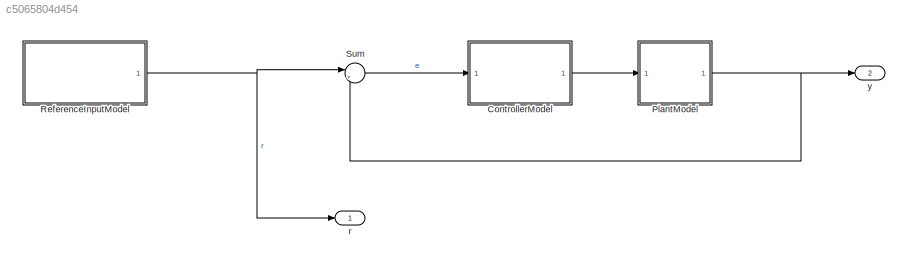
MODEL slx_c5065804d454
KIND model
CONFIG AbsTol = auto
CONFIG EnableMultiTasking = off
CONFIG FixedStep = sample_time
CONFIG InitFcn = clear,\nSampleTime,\nSystemParameters
CONFIG MaxStep = auto
CONFIG MinStep = auto
CONFIG RelTol = 1e-3
CONFIG SampleTimeConstraint = Unconstrained
CONFIG SolverName = FixedStepAuto
CONFIG StartTime = 0.0
CONFIG StopTime = 20.0
BLOCK [ModelReference] ControllerModel
  ModelNameDialog = ControllerModel
  ModelReferenceVersion = 1.11
  Ports = [1, 1]
BLOCK [ModelReference] PlantModel
  ModelNameDialog = PlantModel
  ModelReferenceVersion = 1.11
  Ports = [1, 1]
BLOCK [ModelReference] ReferenceInputModel
  ModelNameDialog = ReferenceInputModel
  ModelReferenceVersion = 1.12
  Ports = [0, 1]
BLOCK [Sum] Sum
  Inputs = |+-
  Ports = [2, 1]
BLOCK [Outport] r
BLOCK [Outport] y
  Port = 2
LINE ControllerModel:1 -> PlantModel:1
NET PlantModel:1 -> Sum:2, y:1
NET ReferenceInputModel:1 -> Sum:1, r:1
LINE Sum:1 -> ControllerModel:1
note: NET lines group one-source signal fan-out (src -> all destinations, sorted); 1:1 wires keep LINE
